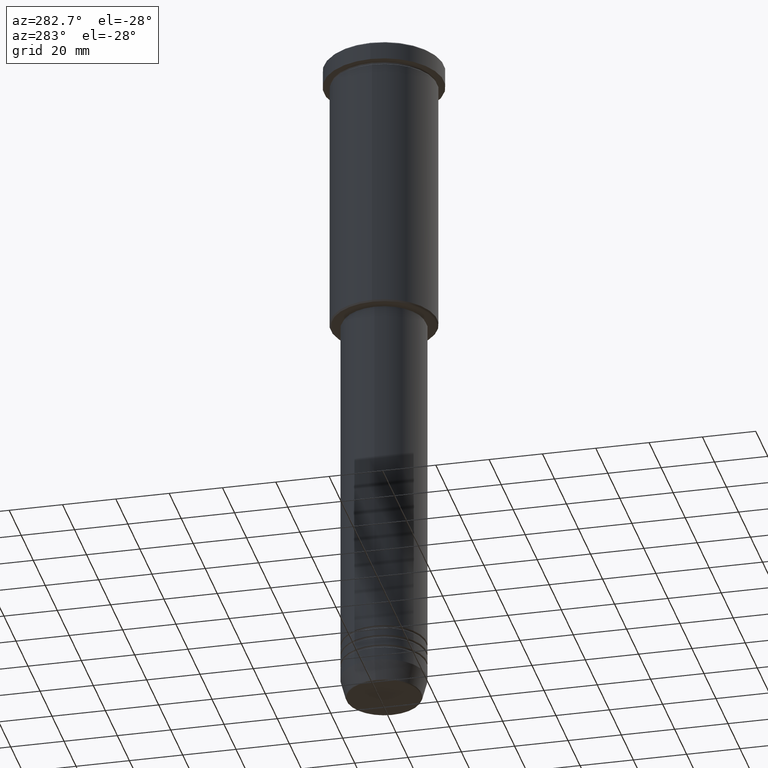
[diagram: clean part render]
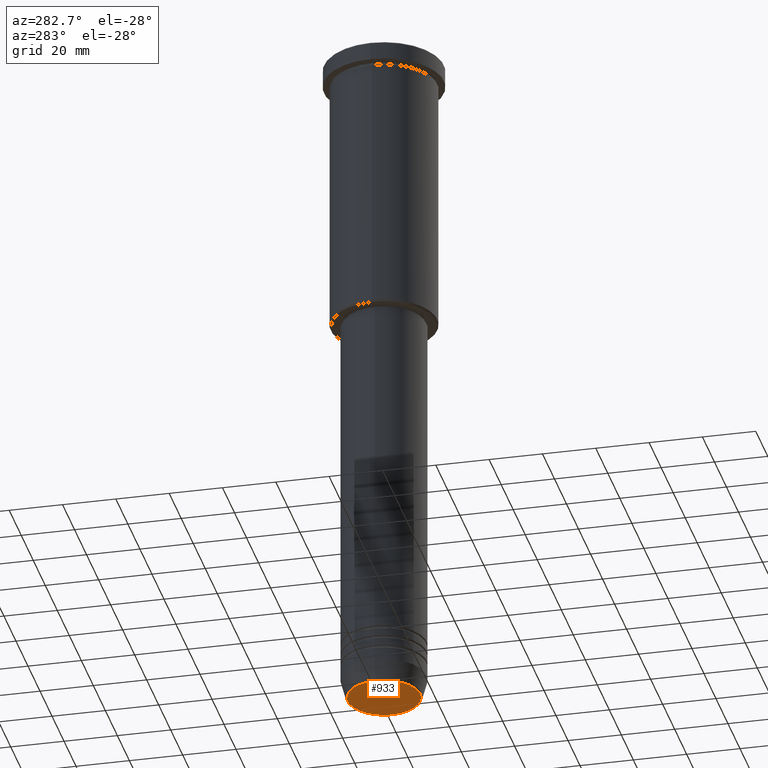
[diagram: same view with one face highlighted and labeled with its STEP entity id]
A machine part, auxiliary view. The second image highlights one B-rep face of the part: STEP entity #933.
In plain terms, the highlighted planar face has unit normal (0, -0, 1).
Its self-contained STEP definition (entity closure, byte-faithful):
#14 = VERTEX_POINT ( 'NONE', #637 ) ;
#107 = VERTEX_POINT ( 'NONE', #374 ) ;
#169 = AXIS2_PLACEMENT_3D ( 'NONE', #260, #961, #418 ) ;
#237 = ORIENTED_EDGE ( 'NONE', *, *, #743, .T. ) ;
#240 = CARTESIAN_POINT ( 'NONE',  ( 0.000000000000000000, 0.000000000000000000, -260.0000000000000000 ) ) ;
#244 = CIRCLE ( 'NONE', #485, 13.60671756277709399 ) ;
#260 = CARTESIAN_POINT ( 'NONE',  ( 0.000000000000000000, 0.000000000000000000, -260.0000000000000000 ) ) ;
#374 = CARTESIAN_POINT ( 'NONE',  ( -13.60671756277709399, 1.695915260300171258E-15, -260.0000000000000000 ) ) ;
#383 = DIRECTION ( 'NONE',  ( 0.000000000000000000, -0.000000000000000000, 1.000000000000000000 ) ) ;
#418 = DIRECTION ( 'NONE',  ( 1.000000000000000000, 0.000000000000000000, 0.000000000000000000 ) ) ;
#485 = AXIS2_PLACEMENT_3D ( 'NONE', #240, #863, #621 ) ;
#621 = DIRECTION ( 'NONE',  ( 1.000000000000000000, 0.000000000000000000, 0.000000000000000000 ) ) ;
#637 = CARTESIAN_POINT ( 'NONE',  ( 13.60671756277709399, 0.000000000000000000, -260.0000000000000000 ) ) ;
#668 = FACE_OUTER_BOUND ( 'NONE', #1081, .T. ) ;
#743 = EDGE_CURVE ( 'NONE', #107, #14, #244, .T. ) ;
#815 = CIRCLE ( 'NONE', #169, 13.60671756277709399 ) ;
#838 = ORIENTED_EDGE ( 'NONE', *, *, #1029, .T. ) ;
#863 = DIRECTION ( 'NONE',  ( 0.000000000000000000, 0.000000000000000000, -1.000000000000000000 ) ) ;
#910 = AXIS2_PLACEMENT_3D ( 'NONE', #1035, #383, #1018 ) ;
#927 = PLANE ( 'NONE',  #910 ) ;
#933 = ADVANCED_FACE ( 'NONE', ( #668 ), #927, .F. ) ;
#961 = DIRECTION ( 'NONE',  ( 0.000000000000000000, 0.000000000000000000, -1.000000000000000000 ) ) ;
#1018 = DIRECTION ( 'NONE',  ( 1.000000000000000000, 0.000000000000000000, 0.000000000000000000 ) ) ;
#1029 = EDGE_CURVE ( 'NONE', #14, #107, #815, .T. ) ;
#1035 = CARTESIAN_POINT ( 'NONE',  ( 0.000000000000000000, 0.000000000000000000, -260.0000000000000000 ) ) ;
#1081 = EDGE_LOOP ( 'NONE', ( #838, #237 ) ) ;